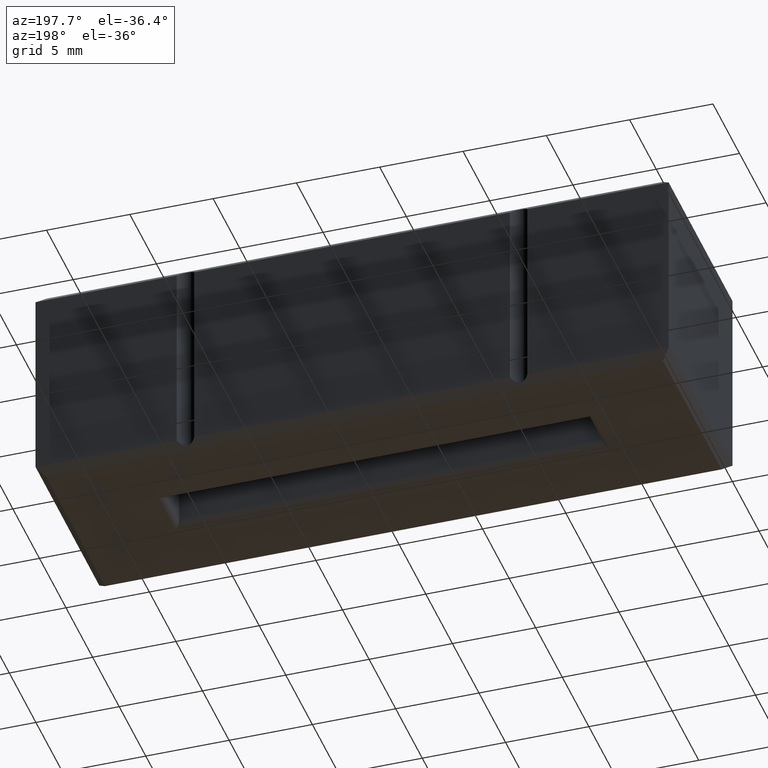
[diagram: clean part render]
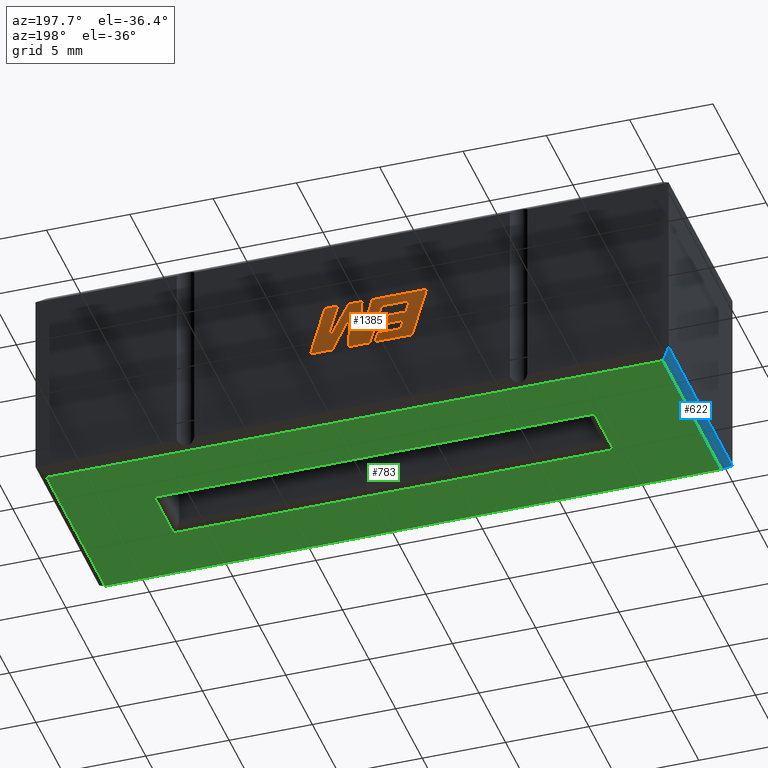
[diagram: same view with three faces highlighted in distinct colors, each labeled with its STEP entity id]
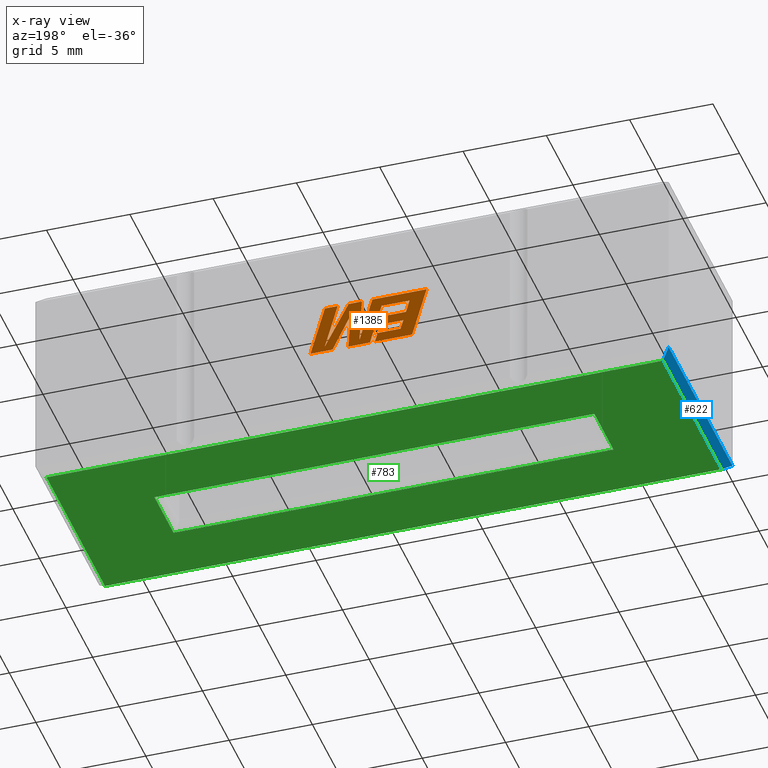
[diagram: x-ray of the same camera — body ghosted, the three highlighted faces saturated]
A machine part, auxiliary view with three faces highlighted in distinct colors.
The next image is the same camera in x-ray (body ghosted, the three faces saturated) — at least one of them is partly hidden behind the body in this view.
Their STEP definitions:

[orange] entity #1385 — the highlighted planar face has unit normal (0, -1, 0).
#11 = VERTEX_POINT ( 'NONE', #2969 ) ;
#16 = VECTOR ( 'NONE', #2023, 1000.000000000000000 ) ;
#39 = ORIENTED_EDGE ( 'NONE', *, *, #377, .T. ) ;
#69 = LINE ( 'NONE', #1594, #3113 ) ;
#77 = ORIENTED_EDGE ( 'NONE', *, *, #1077, .T. ) ;
#82 = CARTESIAN_POINT ( 'NONE',  ( 17.22474259180902223, 12.00099999999999945, 5.975084558317764305 ) ) ;
#86 = VERTEX_POINT ( 'NONE', #1986 ) ;
#102 = VECTOR ( 'NONE', #239, 1000.000000000000000 ) ;
#128 = CARTESIAN_POINT ( 'NONE',  ( 20.63348747674318062, 12.00099999999999945, 7.861159625087134728 ) ) ;
#131 = CARTESIAN_POINT ( 'NONE',  ( 16.09038856426462871, 12.00099999999999945, 5.412578846798971277 ) ) ;
#132 = DIRECTION ( 'NONE',  ( 0.2732148821746252509, 0.000000000000000000, -0.9619530280415492518 ) ) ;
#135 = EDGE_CURVE ( 'NONE', #2846, #275, #1959, .T. ) ;
#154 = EDGE_CURVE ( 'NONE', #11, #317, #248, .T. ) ;
#173 = LINE ( 'NONE', #3227, #1789 ) ;
#190 = EDGE_CURVE ( 'NONE', #2612, #1743, #1481, .T. ) ;
#215 = CARTESIAN_POINT ( 'NONE',  ( 18.40747402078669381, 12.00099999999999945, 7.861159625087134728 ) ) ;
#230 = DIRECTION ( 'NONE',  ( -0.2765379750249967183, 0.000000000000000000, 0.9610029908221275896 ) ) ;
#231 = DIRECTION ( 'NONE',  ( 1.000000000000000000, 0.000000000000000000, 0.000000000000000000 ) ) ;
#239 = DIRECTION ( 'NONE',  ( 1.000000000000000000, 0.000000000000000000, 0.000000000000000000 ) ) ;
#248 = LINE ( 'NONE', #2253, #2764 ) ;
#249 = CARTESIAN_POINT ( 'NONE',  ( 19.21370584693255168, 12.00099999999999945, 7.861159625087134728 ) ) ;
#275 = VERTEX_POINT ( 'NONE', #419 ) ;
#317 = VERTEX_POINT ( 'NONE', #2797 ) ;
#335 = ORIENTED_EDGE ( 'NONE', *, *, #1272, .T. ) ;
#358 = DIRECTION ( 'NONE',  ( 0.2763139702539137987, 0.000000000000000000, -0.9610674221107066151 ) ) ;
#367 = CARTESIAN_POINT ( 'NONE',  ( 17.22474259180902223, 12.00099999999999945, 5.975084558317764305 ) ) ;
#374 = CARTESIAN_POINT ( 'NONE',  ( 17.93340121282047406, 12.00099999999999945, 4.836932798821947266 ) ) ;
#377 = EDGE_CURVE ( 'NONE', #1666, #1762, #69, .T. ) ;
#393 = LINE ( 'NONE', #1870, #3124 ) ;
#413 = VECTOR ( 'NONE', #892, 1000.000000000000000 ) ;
#419 = CARTESIAN_POINT ( 'NONE',  ( 20.17656967092860754, 12.00099999999999945, 4.836932798821947266 ) ) ;
#449 = VECTOR ( 'NONE', #2524, 1000.000000000000227 ) ;
#469 = CARTESIAN_POINT ( 'NONE',  ( 18.40747402078669381, 12.00099999999999945, 7.861159625087134728 ) ) ;
#486 = CARTESIAN_POINT ( 'NONE',  ( 19.22131242482318569, 12.00099999999999945, 4.836932798821947266 ) ) ;
#522 = LINE ( 'NONE', #3080, #102 ) ;
#565 = VECTOR ( 'NONE', #3046, 1000.000000000000114 ) ;
#571 = ORIENTED_EDGE ( 'NONE', *, *, #1611, .T. ) ;
#580 = CARTESIAN_POINT ( 'NONE',  ( 19.10500930886436066, 12.00099999999999945, 6.997479300053103479 ) ) ;
#594 = LINE ( 'NONE', #2127, #1406 ) ;
#615 = LINE ( 'NONE', #367, #2234 ) ;
#628 = CARTESIAN_POINT ( 'NONE',  ( 20.64187375165472460, 12.00099999999999945, 5.155804350488072174 ) ) ;
#636 = DIRECTION ( 'NONE',  ( 0.000000000000000000, -1.000000000000000000, 0.000000000000000000 ) ) ;
#706 = ORIENTED_EDGE ( 'NONE', *, *, #2815, .T. ) ;
#713 = AXIS2_PLACEMENT_3D ( 'NONE', #1598, #636, #2683 ) ;
#722 = CARTESIAN_POINT ( 'NONE',  ( 17.46825721046975843, 12.00099999999999945, 5.412578846798971277 ) ) ;
#725 = ORIENTED_EDGE ( 'NONE', *, *, #2487, .T. ) ;
#736 = CARTESIAN_POINT ( 'NONE',  ( 18.55839018729306744, 12.00099999999999945, 5.168769972878560992 ) ) ;
#737 = EDGE_CURVE ( 'NONE', #2843, #2846, #3135, .T. ) ;
#769 = CARTESIAN_POINT ( 'NONE',  ( 17.22950584882248748, 12.00099999999999945, 7.285798636887586888 ) ) ;
#778 = DIRECTION ( 'NONE',  ( 0.2740217765954066076, 0.000000000000000000, -0.9617234872620595842 ) ) ;
#781 = VERTEX_POINT ( 'NONE', #374 ) ;
#786 = CARTESIAN_POINT ( 'NONE',  ( 14.52730462037847836, 12.00099999999999945, 7.861159625087134728 ) ) ;
#801 = ORIENTED_EDGE ( 'NONE', *, *, #1828, .T. ) ;
#856 = ORIENTED_EDGE ( 'NONE', *, *, #2897, .T. ) ;
#892 = DIRECTION ( 'NONE',  ( -1.000000000000000000, 0.000000000000000000, 0.000000000000000000 ) ) ;
#932 = ORIENTED_EDGE ( 'NONE', *, *, #2637, .T. ) ;
#959 = CARTESIAN_POINT ( 'NONE',  ( 17.63175278934695811, 12.00099999999999945, 4.836932798821948154 ) ) ;
#961 = VECTOR ( 'NONE', #2356, 1000.000000000000000 ) ;
#975 = LINE ( 'NONE', #3055, #16 ) ;
#980 = ORIENTED_EDGE ( 'NONE', *, *, #3209, .T. ) ;
#1005 = LINE ( 'NONE', #736, #565 ) ;
#1019 = DIRECTION ( 'NONE',  ( 1.000000000000000000, 0.000000000000000000, 0.000000000000000000 ) ) ;
#1051 = CARTESIAN_POINT ( 'NONE',  ( 17.78532644624192471, 12.00099999999999945, 7.861159625087134728 ) ) ;
#1077 = EDGE_CURVE ( 'NONE', #1762, #2456, #615, .T. ) ;
#1171 = LINE ( 'NONE', #2501, #2517 ) ;
#1181 = ORIENTED_EDGE ( 'NONE', *, *, #2038, .T. ) ;
#1272 = EDGE_CURVE ( 'NONE', #3279, #1666, #522, .T. ) ;
#1285 = VERTEX_POINT ( 'NONE', #769 ) ;
#1343 = FACE_OUTER_BOUND ( 'NONE', #1804, .T. ) ;
#1369 = DIRECTION ( 'NONE',  ( -0.2762517575166442696, 0.000000000000000000, 0.9610853065513825788 ) ) ;
#1385 = ADVANCED_FACE ( 'NONE', ( #1343 ), #2934, .F. ) ;
#1406 = VECTOR ( 'NONE', #2898, 1000.000000000000000 ) ;
#1441 = EDGE_CURVE ( 'NONE', #1771, #781, #1961, .T. ) ;
#1481 = LINE ( 'NONE', #2506, #3028 ) ;
#1482 = LINE ( 'NONE', #215, #2503 ) ;
#1498 = LINE ( 'NONE', #1051, #449 ) ;
#1502 = DIRECTION ( 'NONE',  ( -1.000000000000000000, 0.000000000000000000, 0.000000000000000000 ) ) ;
#1549 = ORIENTED_EDGE ( 'NONE', *, *, #154, .T. ) ;
#1572 = DIRECTION ( 'NONE',  ( 0.2746459304916928357, 0.000000000000000000, -0.9615454294334471186 ) ) ;
#1594 = CARTESIAN_POINT ( 'NONE',  ( 17.06505394035912460, 12.00099999999999945, 6.534160356962032346 ) ) ;
#1598 = CARTESIAN_POINT ( 'NONE',  ( -20.99801050622235010, 12.00099999999999945, 0.000000000000000000 ) ) ;
#1611 = EDGE_CURVE ( 'NONE', #2909, #3075, #1498, .T. ) ;
#1612 = ORIENTED_EDGE ( 'NONE', *, *, #2163, .T. ) ;
#1620 = ORIENTED_EDGE ( 'NONE', *, *, #1441, .T. ) ;
#1636 = ORIENTED_EDGE ( 'NONE', *, *, #2430, .T. ) ;
#1655 = CARTESIAN_POINT ( 'NONE',  ( 17.63175278934695811, 12.00099999999999945, 4.836932798821948154 ) ) ;
#1666 = VERTEX_POINT ( 'NONE', #2616 ) ;
#1670 = LINE ( 'NONE', #131, #961 ) ;
#1686 = DIRECTION ( 'NONE',  ( 0.2793947940878254155, 0.000000000000000000, -0.9601763114327604987 ) ) ;
#1694 = DIRECTION ( 'NONE',  ( -1.000000000000000000, 0.000000000000000000, 0.000000000000000000 ) ) ;
#1716 = VERTEX_POINT ( 'NONE', #2114 ) ;
#1743 = VERTEX_POINT ( 'NONE', #2598 ) ;
#1762 = VERTEX_POINT ( 'NONE', #82 ) ;
#1771 = VERTEX_POINT ( 'NONE', #486 ) ;
#1789 = VECTOR ( 'NONE', #2767, 1000.000000000000114 ) ;
#1804 = EDGE_LOOP ( 'NONE', ( #2546, #706, #2554, #1620, #856, #1181, #1636, #335, #39, #77, #932, #725, #3126, #2050, #1549, #1612, #571, #801, #3092, #980, #1905, #3159, #2159 ) ) ;
#1810 = EDGE_CURVE ( 'NONE', #1716, #2943, #2532, .T. ) ;
#1811 = CARTESIAN_POINT ( 'NONE',  ( 19.21370584693255168, 12.00099999999999945, 7.861159625087134728 ) ) ;
#1828 = EDGE_CURVE ( 'NONE', #3075, #3084, #1005, .T. ) ;
#1830 = VECTOR ( 'NONE', #778, 1000.000000000000114 ) ;
#1870 = CARTESIAN_POINT ( 'NONE',  ( 17.93340121282047406, 12.00099999999999945, 4.836932798821947266 ) ) ;
#1900 = VECTOR ( 'NONE', #3029, 1000.000000000000227 ) ;
#1905 = ORIENTED_EDGE ( 'NONE', *, *, #190, .T. ) ;
#1917 = VECTOR ( 'NONE', #1994, 1000.000000000000000 ) ;
#1959 = LINE ( 'NONE', #3192, #413 ) ;
#1961 = LINE ( 'NONE', #3236, #2958 ) ;
#1965 = CARTESIAN_POINT ( 'NONE',  ( 18.55839018729306744, 12.00099999999999945, 5.168769972878560992 ) ) ;
#1986 = CARTESIAN_POINT ( 'NONE',  ( 16.09038856426462871, 12.00099999999999945, 5.412578846798971277 ) ) ;
#1994 = DIRECTION ( 'NONE',  ( -1.000000000000000000, 0.000000000000000000, 0.000000000000000000 ) ) ;
#2013 = EDGE_CURVE ( 'NONE', #2943, #11, #2729, .T. ) ;
#2014 = LINE ( 'NONE', #1811, #1900 ) ;
#2022 = CARTESIAN_POINT ( 'NONE',  ( 15.92670907585014639, 12.00099999999999945, 5.975084558317764305 ) ) ;
#2023 = DIRECTION ( 'NONE',  ( -0.4443210308329511027, 0.000000000000000000, 0.8958676361826806156 ) ) ;
#2038 = EDGE_CURVE ( 'NONE', #1285, #2409, #3222, .T. ) ;
#2050 = ORIENTED_EDGE ( 'NONE', *, *, #2013, .T. ) ;
#2075 = CARTESIAN_POINT ( 'NONE',  ( 17.78532644624192471, 12.00099999999999945, 7.861159625087134728 ) ) ;
#2114 = CARTESIAN_POINT ( 'NONE',  ( 17.46825721046975843, 12.00099999999999945, 5.412578846798971277 ) ) ;
#2127 = CARTESIAN_POINT ( 'NONE',  ( 19.86498469222380336, 12.00099999999999945, 7.861159625087134728 ) ) ;
#2159 = ORIENTED_EDGE ( 'NONE', *, *, #737, .T. ) ;
#2163 = EDGE_CURVE ( 'NONE', #317, #2909, #3079, .T. ) ;
#2234 = VECTOR ( 'NONE', #3175, 1000.000000000000000 ) ;
#2253 = CARTESIAN_POINT ( 'NONE',  ( 15.39755535897003114, 12.00099999999999945, 4.836932798821948154 ) ) ;
#2325 = EDGE_CURVE ( 'NONE', #3084, #2355, #1482, .T. ) ;
#2355 = VERTEX_POINT ( 'NONE', #249 ) ;
#2356 = DIRECTION ( 'NONE',  ( 1.000000000000000000, 0.000000000000000000, 0.000000000000000000 ) ) ;
#2409 = VERTEX_POINT ( 'NONE', #2540 ) ;
#2421 = VECTOR ( 'NONE', #358, 1000.000000000000227 ) ;
#2430 = EDGE_CURVE ( 'NONE', #2409, #3279, #2596, .T. ) ;
#2456 = VERTEX_POINT ( 'NONE', #2022 ) ;
#2480 = CARTESIAN_POINT ( 'NONE',  ( 17.22950584882248748, 12.00099999999999945, 7.285798636887586888 ) ) ;
#2487 = EDGE_CURVE ( 'NONE', #86, #1716, #1670, .T. ) ;
#2490 = VERTEX_POINT ( 'NONE', #580 ) ;
#2501 = CARTESIAN_POINT ( 'NONE',  ( 15.92670907585014639, 12.00099999999999945, 5.975084558317764305 ) ) ;
#2503 = VECTOR ( 'NONE', #231, 1000.000000000000000 ) ;
#2506 = CARTESIAN_POINT ( 'NONE',  ( 20.64187375165472460, 12.00099999999999945, 5.155804350488072174 ) ) ;
#2517 = VECTOR ( 'NONE', #1686, 1000.000000000000114 ) ;
#2524 = DIRECTION ( 'NONE',  ( 0.2759782365590778275, 0.000000000000000000, -0.9611638845408942977 ) ) ;
#2528 = EDGE_CURVE ( 'NONE', #1743, #2843, #594, .T. ) ;
#2532 = LINE ( 'NONE', #722, #3013 ) ;
#2540 = CARTESIAN_POINT ( 'NONE',  ( 15.55304167746695043, 12.00099999999999945, 7.285798636887586888 ) ) ;
#2546 = ORIENTED_EDGE ( 'NONE', *, *, #135, .T. ) ;
#2554 = ORIENTED_EDGE ( 'NONE', *, *, #3071, .T. ) ;
#2596 = LINE ( 'NONE', #3103, #1830 ) ;
#2598 = CARTESIAN_POINT ( 'NONE',  ( 19.86498469222380336, 12.00099999999999945, 7.861159625087134728 ) ) ;
#2612 = VERTEX_POINT ( 'NONE', #628 ) ;
#2616 = CARTESIAN_POINT ( 'NONE',  ( 17.06505394035912460, 12.00099999999999945, 6.534160356962032346 ) ) ;
#2637 = EDGE_CURVE ( 'NONE', #2456, #86, #1171, .T. ) ;
#2683 = DIRECTION ( 'NONE',  ( 0.000000000000000000, 0.000000000000000000, -1.000000000000000000 ) ) ;
#2729 = LINE ( 'NONE', #959, #1917 ) ;
#2764 = VECTOR ( 'NONE', #230, 1000.000000000000114 ) ;
#2767 = DIRECTION ( 'NONE',  ( 0.05375259206908789694, 0.000000000000000000, -0.9985542843760945031 ) ) ;
#2778 = CARTESIAN_POINT ( 'NONE',  ( 20.63348747674318062, 12.00099999999999945, 7.861159625087134728 ) ) ;
#2797 = CARTESIAN_POINT ( 'NONE',  ( 14.52730462037847836, 12.00099999999999945, 7.861159625087134728 ) ) ;
#2815 = EDGE_CURVE ( 'NONE', #275, #2490, #975, .T. ) ;
#2826 = VECTOR ( 'NONE', #1502, 1000.000000000000000 ) ;
#2843 = VERTEX_POINT ( 'NONE', #2778 ) ;
#2846 = VERTEX_POINT ( 'NONE', #3073 ) ;
#2897 = EDGE_CURVE ( 'NONE', #781, #1285, #393, .T. ) ;
#2898 = DIRECTION ( 'NONE',  ( 1.000000000000000000, 0.000000000000000000, 0.000000000000000000 ) ) ;
#2909 = VERTEX_POINT ( 'NONE', #2075 ) ;
#2920 = CARTESIAN_POINT ( 'NONE',  ( 15.76720433393765930, 12.00099999999999945, 6.534160356962032346 ) ) ;
#2934 = PLANE ( 'NONE',  #713 ) ;
#2943 = VERTEX_POINT ( 'NONE', #1655 ) ;
#2958 = VECTOR ( 'NONE', #1694, 1000.000000000000000 ) ;
#2969 = CARTESIAN_POINT ( 'NONE',  ( 15.39755535897003114, 12.00099999999999945, 4.836932798821948154 ) ) ;
#3013 = VECTOR ( 'NONE', #132, 1000.000000000000000 ) ;
#3028 = VECTOR ( 'NONE', #3266, 1000.000000000000114 ) ;
#3029 = DIRECTION ( 'NONE',  ( 0.4668459304955216993, 0.000000000000000000, -0.8843386665637608113 ) ) ;
#3046 = DIRECTION ( 'NONE',  ( -0.05596501978067924821, 0.000000000000000000, 0.9984327301130246912 ) ) ;
#3055 = CARTESIAN_POINT ( 'NONE',  ( 20.17656967092860754, 12.00099999999999945, 4.836932798821947266 ) ) ;
#3071 = EDGE_CURVE ( 'NONE', #2490, #1771, #173, .T. ) ;
#3073 = CARTESIAN_POINT ( 'NONE',  ( 21.50297498832534870, 12.00099999999999945, 4.836932798821947266 ) ) ;
#3075 = VERTEX_POINT ( 'NONE', #1965 ) ;
#3079 = LINE ( 'NONE', #786, #3291 ) ;
#3080 = CARTESIAN_POINT ( 'NONE',  ( 15.76720433393765930, 12.00099999999999945, 6.534160356962032346 ) ) ;
#3084 = VERTEX_POINT ( 'NONE', #469 ) ;
#3092 = ORIENTED_EDGE ( 'NONE', *, *, #2325, .T. ) ;
#3103 = CARTESIAN_POINT ( 'NONE',  ( 15.55304167746695043, 12.00099999999999945, 7.285798636887586888 ) ) ;
#3113 = VECTOR ( 'NONE', #1572, 1000.000000000000000 ) ;
#3124 = VECTOR ( 'NONE', #1369, 1000.000000000000114 ) ;
#3126 = ORIENTED_EDGE ( 'NONE', *, *, #1810, .T. ) ;
#3135 = LINE ( 'NONE', #128, #2421 ) ;
#3159 = ORIENTED_EDGE ( 'NONE', *, *, #2528, .T. ) ;
#3175 = DIRECTION ( 'NONE',  ( -1.000000000000000000, 0.000000000000000000, 0.000000000000000000 ) ) ;
#3192 = CARTESIAN_POINT ( 'NONE',  ( 21.50297498832534870, 12.00099999999999945, 4.836932798821947266 ) ) ;
#3209 = EDGE_CURVE ( 'NONE', #2355, #2612, #2014, .T. ) ;
#3222 = LINE ( 'NONE', #2480, #2826 ) ;
#3227 = CARTESIAN_POINT ( 'NONE',  ( 19.10500930886436066, 12.00099999999999945, 6.997479300053103479 ) ) ;
#3236 = CARTESIAN_POINT ( 'NONE',  ( 19.22131242482318569, 12.00099999999999945, 4.836932798821947266 ) ) ;
#3266 = DIRECTION ( 'NONE',  ( -0.2760118818968571586, 0.000000000000000000, 0.9611542233438685745 ) ) ;
#3279 = VERTEX_POINT ( 'NONE', #2920 ) ;
#3291 = VECTOR ( 'NONE', #1019, 1000.000000000000000 ) ;

[blue] entity #622 — the highlighted planar face has unit normal (-0.7071, 0, -0.7071).
#40 = ORIENTED_EDGE ( 'NONE', *, *, #898, .F. ) ;
#74 = VECTOR ( 'NONE', #1079, 1000.000000000000114 ) ;
#95 = VERTEX_POINT ( 'NONE', #1690 ) ;
#218 = CARTESIAN_POINT ( 'NONE',  ( 0.5000000000000038858, 0.5000000000000038858, 0.000000000000000000 ) ) ;
#476 = EDGE_CURVE ( 'NONE', #1574, #582, #1150, .T. ) ;
#537 = CARTESIAN_POINT ( 'NONE',  ( 0.000000000000000000, 0.000000000000000000, 0.5000000000000004441 ) ) ;
#582 = VERTEX_POINT ( 'NONE', #1491 ) ;
#622 = ADVANCED_FACE ( 'NONE', ( #2233 ), #704, .T. ) ;
#704 = PLANE ( 'NONE',  #3264 ) ;
#777 = ORIENTED_EDGE ( 'NONE', *, *, #2951, .F. ) ;
#887 = CARTESIAN_POINT ( 'NONE',  ( 0.000000000000000000, 12.00000000000000000, 0.5000000000000004441 ) ) ;
#898 = EDGE_CURVE ( 'NONE', #2774, #582, #1822, .T. ) ;
#986 = LINE ( 'NONE', #887, #2869 ) ;
#1079 = DIRECTION ( 'NONE',  ( -0.5773502691896270633, -0.5773502691896270633, 0.5773502691896231775 ) ) ;
#1104 = ORIENTED_EDGE ( 'NONE', *, *, #1850, .T. ) ;
#1150 = LINE ( 'NONE', #2874, #74 ) ;
#1154 = VECTOR ( 'NONE', #1399, 1000.000000000000000 ) ;
#1248 = CARTESIAN_POINT ( 'NONE',  ( 0.000000000000000000, 12.00000000000000000, 0.5000000000000004441 ) ) ;
#1399 = DIRECTION ( 'NONE',  ( -0.000000000000000000, 1.000000000000000000, 0.000000000000000000 ) ) ;
#1440 = VECTOR ( 'NONE', #1595, 1000.000000000000000 ) ;
#1491 = CARTESIAN_POINT ( 'NONE',  ( 0.000000000000000000, 0.000000000000000000, 0.5000000000000004441 ) ) ;
#1574 = VERTEX_POINT ( 'NONE', #218 ) ;
#1595 = DIRECTION ( 'NONE',  ( 0.000000000000000000, -1.000000000000000000, 0.000000000000000000 ) ) ;
#1657 = DIRECTION ( 'NONE',  ( 0.5773502691896270633, -0.5773502691896270633, -0.5773502691896231775 ) ) ;
#1690 = CARTESIAN_POINT ( 'NONE',  ( 0.5000000000000038858, 11.49999999999999645, 0.000000000000000000 ) ) ;
#1802 = LINE ( 'NONE', #3186, #1154 ) ;
#1822 = LINE ( 'NONE', #537, #1440 ) ;
#1850 = EDGE_CURVE ( 'NONE', #2774, #95, #986, .T. ) ;
#2233 = FACE_OUTER_BOUND ( 'NONE', #3060, .T. ) ;
#2706 = CARTESIAN_POINT ( 'NONE',  ( 0.000000000000000000, 0.000000000000000000, 0.5000000000000004441 ) ) ;
#2737 = ORIENTED_EDGE ( 'NONE', *, *, #476, .T. ) ;
#2774 = VERTEX_POINT ( 'NONE', #1248 ) ;
#2869 = VECTOR ( 'NONE', #1657, 1000.000000000000114 ) ;
#2874 = CARTESIAN_POINT ( 'NONE',  ( 0.000000000000000000, 0.000000000000000000, 0.5000000000000004441 ) ) ;
#2951 = EDGE_CURVE ( 'NONE', #1574, #95, #1802, .T. ) ;
#2963 = DIRECTION ( 'NONE',  ( -0.000000000000000000, 1.000000000000000000, 0.000000000000000000 ) ) ;
#3032 = DIRECTION ( 'NONE',  ( -0.7071067811865451302, 0.000000000000000000, -0.7071067811865500152 ) ) ;
#3060 = EDGE_LOOP ( 'NONE', ( #1104, #777, #2737, #40 ) ) ;
#3186 = CARTESIAN_POINT ( 'NONE',  ( 0.5000000000000038858, 12.00000000000000000, 0.000000000000000000 ) ) ;
#3264 = AXIS2_PLACEMENT_3D ( 'NONE', #2706, #3032, #2963 ) ;

[green] entity #783 — the highlighted planar face has unit normal (0, 0, -1).
#76 = LINE ( 'NONE', #3184, #700 ) ;
#93 = DIRECTION ( 'NONE',  ( 1.000802005371228324E-15, -1.000000000000000000, 0.000000000000000000 ) ) ;
#95 = VERTEX_POINT ( 'NONE', #1690 ) ;
#210 = LINE ( 'NONE', #2000, #1565 ) ;
#218 = CARTESIAN_POINT ( 'NONE',  ( 0.5000000000000038858, 0.5000000000000038858, 0.000000000000000000 ) ) ;
#285 = VERTEX_POINT ( 'NONE', #519 ) ;
#387 = CARTESIAN_POINT ( 'NONE',  ( 38.00000000000000000, 11.49999999999999645, 0.000000000000000000 ) ) ;
#400 = CARTESIAN_POINT ( 'NONE',  ( -2.294752314677974004E-15, 4.199999999999988631, 0.000000000000000000 ) ) ;
#499 = VERTEX_POINT ( 'NONE', #1915 ) ;
#519 = CARTESIAN_POINT ( 'NONE',  ( 32.20000000000000284, 7.800000000000006928, 0.000000000000000000 ) ) ;
#598 = EDGE_CURVE ( 'NONE', #3157, #1574, #210, .T. ) ;
#599 = ORIENTED_EDGE ( 'NONE', *, *, #1056, .T. ) ;
#655 = ORIENTED_EDGE ( 'NONE', *, *, #761, .T. ) ;
#666 = VECTOR ( 'NONE', #1849, 1000.000000000000000 ) ;
#693 = EDGE_CURVE ( 'NONE', #730, #3231, #76, .T. ) ;
#700 = VECTOR ( 'NONE', #93, 1000.000000000000000 ) ;
#730 = VERTEX_POINT ( 'NONE', #1632 ) ;
#761 = EDGE_CURVE ( 'NONE', #2783, #285, #1918, .T. ) ;
#783 = ADVANCED_FACE ( 'NONE', ( #2670, #2386 ), #2907, .T. ) ;
#795 = VECTOR ( 'NONE', #919, 1000.000000000000000 ) ;
#863 = DIRECTION ( 'NONE',  ( 0.000000000000000000, 1.000000000000000000, 0.000000000000000000 ) ) ;
#919 = DIRECTION ( 'NONE',  ( 1.000000000000000000, 5.463695987328524465E-16, 0.000000000000000000 ) ) ;
#945 = DIRECTION ( 'NONE',  ( -1.000000000000000000, 0.000000000000000000, -0.000000000000000000 ) ) ;
#1007 = EDGE_CURVE ( 'NONE', #3231, #2783, #2697, .T. ) ;
#1056 = EDGE_CURVE ( 'NONE', #499, #3157, #1127, .T. ) ;
#1062 = CARTESIAN_POINT ( 'NONE',  ( 1.065420717529063543E-15, 7.800000000000010481, 0.000000000000000000 ) ) ;
#1125 = ORIENTED_EDGE ( 'NONE', *, *, #598, .T. ) ;
#1127 = LINE ( 'NONE', #2145, #1484 ) ;
#1154 = VECTOR ( 'NONE', #1399, 1000.000000000000000 ) ;
#1192 = VECTOR ( 'NONE', #863, 1000.000000000000000 ) ;
#1228 = DIRECTION ( 'NONE',  ( -1.000000000000000000, 0.000000000000000000, 0.000000000000000000 ) ) ;
#1345 = EDGE_CURVE ( 'NONE', #95, #499, #1644, .T. ) ;
#1397 = CARTESIAN_POINT ( 'NONE',  ( 0.000000000000000000, 0.000000000000000000, 0.000000000000000000 ) ) ;
#1399 = DIRECTION ( 'NONE',  ( -0.000000000000000000, 1.000000000000000000, 0.000000000000000000 ) ) ;
#1484 = VECTOR ( 'NONE', #3158, 1000.000000000000000 ) ;
#1527 = LINE ( 'NONE', #1062, #666 ) ;
#1565 = VECTOR ( 'NONE', #1228, 1000.000000000000000 ) ;
#1574 = VERTEX_POINT ( 'NONE', #218 ) ;
#1578 = VECTOR ( 'NONE', #2623, 1000.000000000000000 ) ;
#1632 = CARTESIAN_POINT ( 'NONE',  ( 5.799999999999993605, 7.800000000000010481, 0.000000000000000000 ) ) ;
#1644 = LINE ( 'NONE', #387, #1578 ) ;
#1690 = CARTESIAN_POINT ( 'NONE',  ( 0.5000000000000038858, 11.49999999999999645, 0.000000000000000000 ) ) ;
#1769 = CARTESIAN_POINT ( 'NONE',  ( 32.20000000000000284, 4.200000000000005507, 0.000000000000000000 ) ) ;
#1802 = LINE ( 'NONE', #3186, #1154 ) ;
#1849 = DIRECTION ( 'NONE',  ( -1.000000000000000000, 1.365923996832130870E-16, 0.000000000000000000 ) ) ;
#1852 = ORIENTED_EDGE ( 'NONE', *, *, #1899, .T. ) ;
#1899 = EDGE_CURVE ( 'NONE', #285, #730, #1527, .T. ) ;
#1915 = CARTESIAN_POINT ( 'NONE',  ( 37.49999999999999289, 11.49999999999999645, 0.000000000000000000 ) ) ;
#1918 = LINE ( 'NONE', #2169, #1192 ) ;
#2000 = CARTESIAN_POINT ( 'NONE',  ( 0.000000000000000000, 0.5000000000000038858, 0.000000000000000000 ) ) ;
#2077 = EDGE_LOOP ( 'NONE', ( #1125, #2572, #2923, #599 ) ) ;
#2145 = CARTESIAN_POINT ( 'NONE',  ( 37.49999999999999289, 0.000000000000000000, 0.000000000000000000 ) ) ;
#2169 = CARTESIAN_POINT ( 'NONE',  ( 32.20000000000000284, 0.000000000000000000, -0.000000000000000000 ) ) ;
#2259 = AXIS2_PLACEMENT_3D ( 'NONE', #1397, #2748, #945 ) ;
#2386 = FACE_BOUND ( 'NONE', #2626, .T. ) ;
#2401 = CARTESIAN_POINT ( 'NONE',  ( 5.799999999999998046, 4.199999999999992184, 0.000000000000000000 ) ) ;
#2572 = ORIENTED_EDGE ( 'NONE', *, *, #2951, .T. ) ;
#2623 = DIRECTION ( 'NONE',  ( 1.000000000000000000, 0.000000000000000000, 0.000000000000000000 ) ) ;
#2626 = EDGE_LOOP ( 'NONE', ( #3101, #2900, #655, #1852 ) ) ;
#2670 = FACE_OUTER_BOUND ( 'NONE', #2077, .T. ) ;
#2697 = LINE ( 'NONE', #400, #795 ) ;
#2748 = DIRECTION ( 'NONE',  ( 0.000000000000000000, 0.000000000000000000, -1.000000000000000000 ) ) ;
#2783 = VERTEX_POINT ( 'NONE', #1769 ) ;
#2785 = CARTESIAN_POINT ( 'NONE',  ( 37.49999999999999289, 0.5000000000000038858, 0.000000000000000000 ) ) ;
#2900 = ORIENTED_EDGE ( 'NONE', *, *, #1007, .T. ) ;
#2907 = PLANE ( 'NONE',  #2259 ) ;
#2923 = ORIENTED_EDGE ( 'NONE', *, *, #1345, .T. ) ;
#2951 = EDGE_CURVE ( 'NONE', #1574, #95, #1802, .T. ) ;
#3101 = ORIENTED_EDGE ( 'NONE', *, *, #693, .T. ) ;
#3157 = VERTEX_POINT ( 'NONE', #2785 ) ;
#3158 = DIRECTION ( 'NONE',  ( 0.000000000000000000, -1.000000000000000000, 0.000000000000000000 ) ) ;
#3184 = CARTESIAN_POINT ( 'NONE',  ( 5.800000000000001599, 5.804651631153125185E-15, 0.000000000000000000 ) ) ;
#3186 = CARTESIAN_POINT ( 'NONE',  ( 0.5000000000000038858, 12.00000000000000000, 0.000000000000000000 ) ) ;
#3231 = VERTEX_POINT ( 'NONE', #2401 ) ;